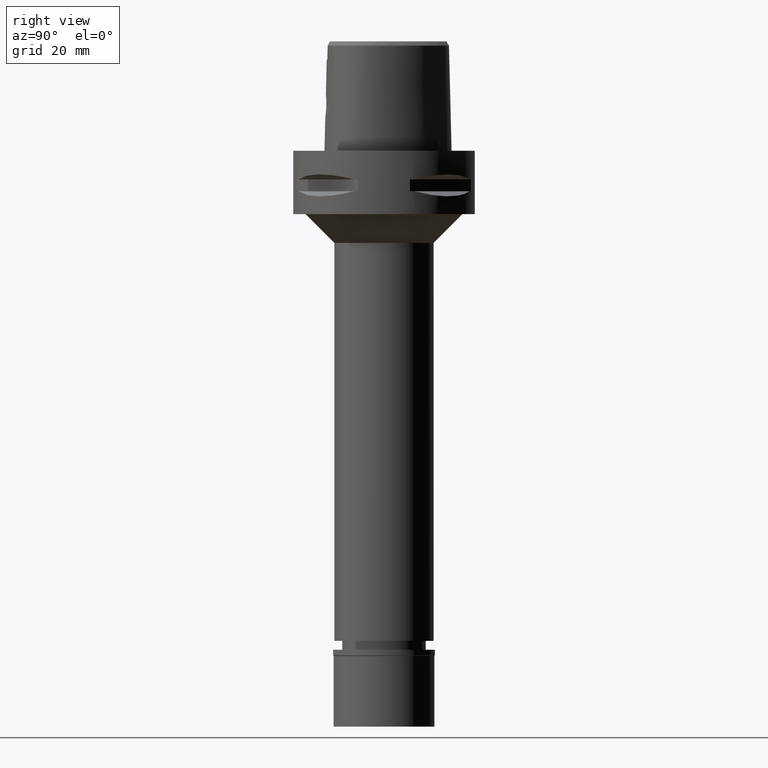
[diagram: clean part render]
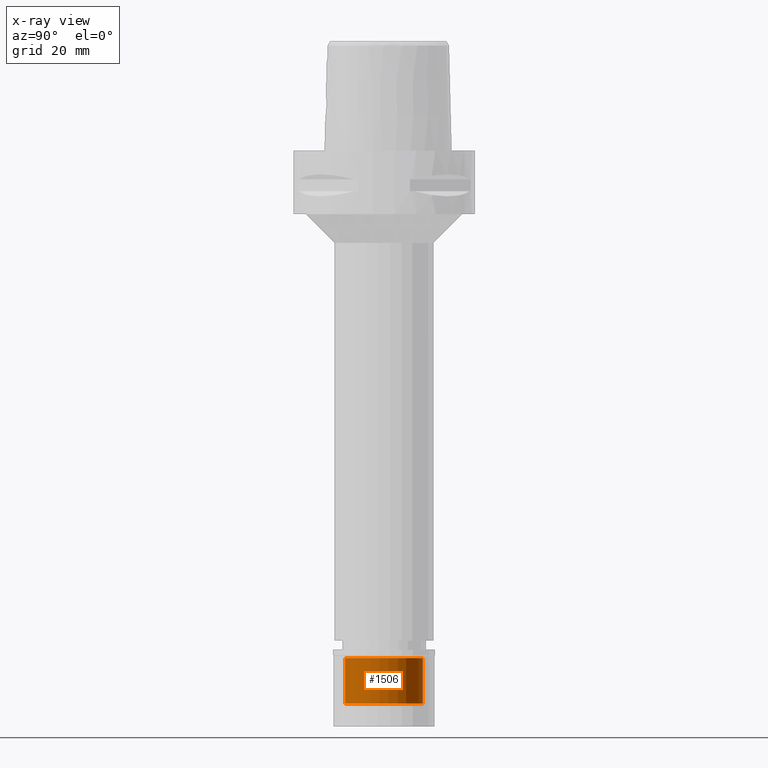
[diagram: x-ray — body ghosted, one internal face saturated and labeled with its STEP entity id]
A machine part, right view, then the same camera in x-ray: the body is ghosted and one INTERNAL B-rep face — a face not visible from any outside direction — is saturated and labeled: STEP entity #1506.
In plain terms, the highlighted cylindrical surface (partial cylindrical patch) has radius 13.5 mm, axis along (0, 0, -1).
Its self-contained STEP definition (entity closure, byte-faithful):
#187 = DIRECTION ( 'NONE',  ( 0.0000000000000000000, -1.000000000000000000, 0.0000000000000000000 ) ) ;
#397 = FACE_OUTER_BOUND ( 'NONE', #2929, .T. ) ;
#425 = AXIS2_PLACEMENT_3D ( 'NONE', #4219, #1627, #864 ) ;
#576 = CARTESIAN_POINT ( 'NONE',  ( 0.0000000000000000000, 0.0000000000000000000, -2.899999999999999911 ) ) ;
#594 = CARTESIAN_POINT ( 'NONE',  ( 0.0000000000000000000, 0.0000000000000000000, -18.70000000000000284 ) ) ;
#619 = ORIENTED_EDGE ( 'NONE', *, *, #2698, .T. ) ;
#620 = ORIENTED_EDGE ( 'NONE', *, *, #3601, .F. ) ;
#864 = DIRECTION ( 'NONE',  ( 0.0000000000000000000, -1.000000000000000000, 0.0000000000000000000 ) ) ;
#1312 = DIRECTION ( 'NONE',  ( 0.0000000000000000000, 1.000000000000000000, 0.0000000000000000000 ) ) ;
#1318 = DIRECTION ( 'NONE',  ( 0.0000000000000000000, 0.0000000000000000000, 1.000000000000000000 ) ) ;
#1506 = ADVANCED_FACE ( 'NONE', ( #397 ), #2405, .F. ) ;
#1627 = DIRECTION ( 'NONE',  ( 0.0000000000000000000, 0.0000000000000000000, -1.000000000000000000 ) ) ;
#1649 = ORIENTED_EDGE ( 'NONE', *, *, #4869, .T. ) ;
#1724 = ORIENTED_EDGE ( 'NONE', *, *, #3872, .T. ) ;
#1913 = LINE ( 'NONE', #4613, #2344 ) ;
#2072 = LINE ( 'NONE', #3200, #3365 ) ;
#2224 = CARTESIAN_POINT ( 'NONE',  ( 0.0000000000000000000, 13.50000000000000000, -2.899999999999999911 ) ) ;
#2263 = AXIS2_PLACEMENT_3D ( 'NONE', #576, #1318, #187 ) ;
#2344 = VECTOR ( 'NONE', #2654, 1000.000000000000000 ) ;
#2405 = CYLINDRICAL_SURFACE ( 'NONE', #425, 13.50000000000000000 ) ;
#2506 = CIRCLE ( 'NONE', #2263, 13.50000000000000000 ) ;
#2654 = DIRECTION ( 'NONE',  ( 0.0000000000000000000, 0.0000000000000000000, 1.000000000000000000 ) ) ;
#2657 = CIRCLE ( 'NONE', #3755, 13.50000000000000000 ) ;
#2698 = EDGE_CURVE ( 'NONE', #3996, #4890, #2657, .T. ) ;
#2786 = VERTEX_POINT ( 'NONE', #2224 ) ;
#2929 = EDGE_LOOP ( 'NONE', ( #619, #1724, #1649, #620 ) ) ;
#3179 = DIRECTION ( 'NONE',  ( 0.0000000000000000000, 0.0000000000000000000, -1.000000000000000000 ) ) ;
#3200 = CARTESIAN_POINT ( 'NONE',  ( 0.0000000000000000000, -13.50000000000000000, -18.70000000000000284 ) ) ;
#3365 = VECTOR ( 'NONE', #4018, 1000.000000000000000 ) ;
#3601 = EDGE_CURVE ( 'NONE', #3996, #2786, #1913, .T. ) ;
#3755 = AXIS2_PLACEMENT_3D ( 'NONE', #594, #3179, #1312 ) ;
#3872 = EDGE_CURVE ( 'NONE', #4890, #4220, #2072, .T. ) ;
#3996 = VERTEX_POINT ( 'NONE', #4711 ) ;
#4018 = DIRECTION ( 'NONE',  ( 0.0000000000000000000, 0.0000000000000000000, 1.000000000000000000 ) ) ;
#4219 = CARTESIAN_POINT ( 'NONE',  ( 0.0000000000000000000, 0.0000000000000000000, 0.0000000000000000000 ) ) ;
#4220 = VERTEX_POINT ( 'NONE', #4536 ) ;
#4332 = CARTESIAN_POINT ( 'NONE',  ( 0.0000000000000000000, -13.50000000000000000, -18.70000000000000284 ) ) ;
#4536 = CARTESIAN_POINT ( 'NONE',  ( 0.0000000000000000000, -13.50000000000000000, -2.899999999999999911 ) ) ;
#4613 = CARTESIAN_POINT ( 'NONE',  ( 0.0000000000000000000, 13.50000000000000000, -18.70000000000000284 ) ) ;
#4711 = CARTESIAN_POINT ( 'NONE',  ( 0.0000000000000000000, 13.50000000000000000, -18.70000000000000284 ) ) ;
#4869 = EDGE_CURVE ( 'NONE', #4220, #2786, #2506, .T. ) ;
#4890 = VERTEX_POINT ( 'NONE', #4332 ) ;